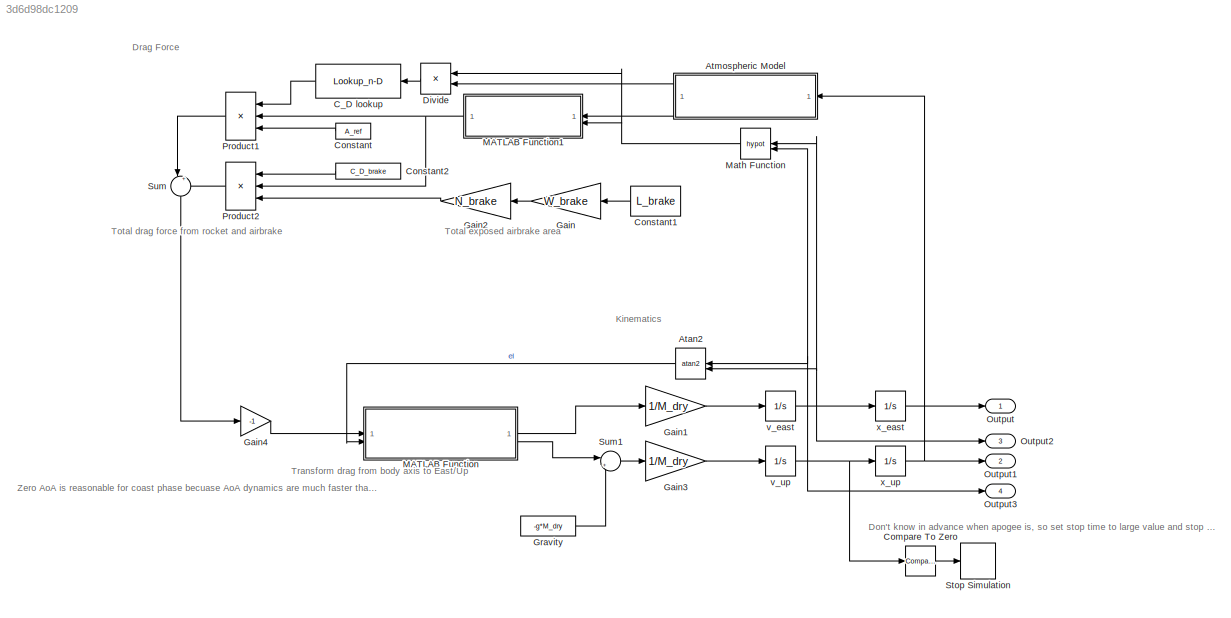
MODEL slx_3d6d98dc1209
KIND model
CONFIG AbsTol = auto
CONFIG EnableMultiTasking = off
CONFIG FixedStep = dt
CONFIG MaxStep = auto
CONFIG MinStep = auto
CONFIG RelTol = 1e-3
CONFIG SampleTimeConstraint = Unconstrained
CONFIG SolverName = FixedStepAuto
CONFIG StartTime = t_0
CONFIG StopTime = t_f
BLOCK [Trigonometry] Atan2
  NameLocation = top
  Operator = atan2
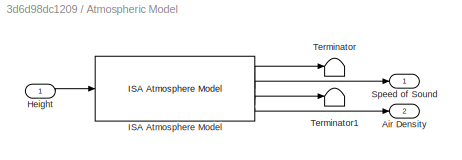
BLOCK [SubSystem] Atmospheric Model
  NameLocation = top
BLOCK [Outport] Atmospheric Model/Air Density
  NameLocation = top
  Port = 2
BLOCK [Inport] Atmospheric Model/Height
BLOCK [Reference] Atmospheric Model/ISA Atmosphere Model  REF=aerolibatmos2/ISA Atmosphere Model
  SourceBlock = aerolibatmos2/ISA Atmosphere Model
  SourceType = International Standard Atmosphere Model
BLOCK [Outport] Atmospheric Model/Speed of Sound
  NameLocation = top
BLOCK [Terminator] Atmospheric Model/Terminator
BLOCK [Terminator] Atmospheric Model/Terminator1
BLOCK [Lookup_n-D] C_D lookup
  BreakpointsForDimension1 = C_D_lookup.("Mach number")
  InputPortMap = u0
  InternalRulePriority = Speed
  NumberOfTableDimensions = 1
  RndMeth = Simplest
  Table = C_D_lookup.("Drag coefficient")
BLOCK [Reference] Compare To Zero  REF=simulink/Logic and Bit
Operations/Compare
To Zero
  SourceBlock = simulink/Logic and Bit\nOperations/Compare\nTo Zero
  SourceType = Compare To Zero
BLOCK [Constant] Constant
  Value = A_ref
BLOCK [Constant] Constant1
  NameLocation = top
  Value = L_brake
BLOCK [Constant] Constant2
  NameLocation = top
  Value = C_D_brake
BLOCK [Product] Divide
  Inputs = */
  NameLocation = top
BLOCK [Gain] Gain
  Gain = W_brake
  NameLocation = top
BLOCK [Gain] Gain1
  Gain = 1/M_dry
BLOCK [Gain] Gain2
  Gain = N_brake
  NameLocation = top
BLOCK [Gain] Gain3
  Gain = 1/M_dry
BLOCK [Gain] Gain4
  Gain = -1
BLOCK [Constant] Gravity
  NameLocation = left
  Value = -g*M_dry
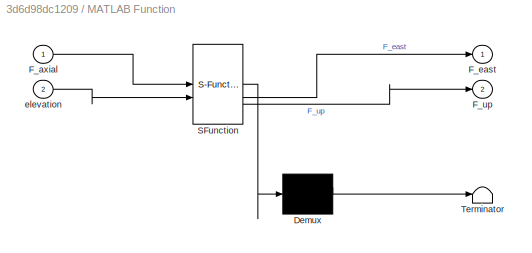
BLOCK [SubSystem] MATLAB Function
  ErrorFcn = Stateflow.Translate.translate
  PermitHierarchicalResolution = ExplicitOnly
  SFBlockType = MATLAB Function
  TreatAsAtomicUnit = on
BLOCK [Demux] MATLAB Function/ Demux 
  Outputs = 1
BLOCK [S-Function] MATLAB Function/ SFunction 
  EnableBusSupport = on
  FunctionName = sf_sfun
  PortCounts = [2 3]
  SFcnIsStateOwnerBlock = off
  SFunctionDeploymentMode = off
  Tag = Stateflow S-Function 1
BLOCK [Terminator] MATLAB Function/ Terminator 
BLOCK [Inport] MATLAB Function/F_axial
BLOCK [Outport] MATLAB Function/F_east
BLOCK [Outport] MATLAB Function/F_up
  Port = 2
BLOCK [Inport] MATLAB Function/elevation
  Port = 2
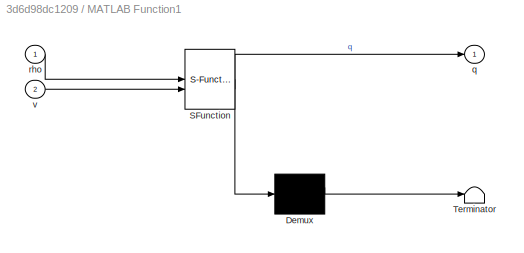
BLOCK [SubSystem] MATLAB Function1
  ErrorFcn = Stateflow.Translate.translate
  NameLocation = top
  PermitHierarchicalResolution = ExplicitOnly
  SFBlockType = MATLAB Function
  TreatAsAtomicUnit = on
BLOCK [Demux] MATLAB Function1/ Demux 
  Outputs = 1
BLOCK [S-Function] MATLAB Function1/ SFunction 
  EnableBusSupport = on
  FunctionName = sf_sfun
  PortCounts = [2 2]
  SFcnIsStateOwnerBlock = off
  SFunctionDeploymentMode = off
  Tag = Stateflow S-Function 3
BLOCK [Terminator] MATLAB Function1/ Terminator 
BLOCK [Outport] MATLAB Function1/q
BLOCK [Inport] MATLAB Function1/rho
BLOCK [Inport] MATLAB Function1/v
  Port = 2
BLOCK [Math] Math Function
  NameLocation = top
  Operator = hypot
BLOCK [Outport] Output
  SignalName = x_east
BLOCK [Outport] Output1
  Port = 2
  SignalName = x_up
BLOCK [Outport] Output2
  Port = 3
  SignalName = v_east
BLOCK [Outport] Output3
  Port = 4
  SignalName = v_up
BLOCK [Product] Product1
  Inputs = 3
  NameLocation = top
BLOCK [Product] Product2
  Inputs = 3
  NameLocation = top
BLOCK [Stop] Stop Simulation
BLOCK [Sum] Sum
  Inputs = |++
  NameLocation = left
BLOCK [Sum] Sum1
  Inputs = |++
BLOCK [Integrator] v_east
  ContinuousStateAttributes = 'v_east'
  InitialCondition = v_east_0
BLOCK [Integrator] v_up
  ContinuousStateAttributes = 'v_east'
  InitialCondition = v_up_0
BLOCK [Integrator] x_east
  ContinuousStateAttributes = 'x_up'
  InitialCondition = x_east_0
BLOCK [Integrator] x_up
  ContinuousStateAttributes = 'x_up'
  InitialCondition = x_up_0
ANNOTATION (root): Don't know in advance when apogee is, so set stop time to large value and stop sim at apogee
ANNOTATION (root): Drag Force
ANNOTATION (root): Kinematics
ANNOTATION (root): Total drag force from rocket and airbrake
ANNOTATION (root): Total exposed airbrake area
ANNOTATION (root): Transform drag from body axis to East/Up
ANNOTATION (root): Zero AoA is reasonable for coast phase becuase AoA dynamics are much faster than overall angle change. In that case, the angle is obtained from the speeds and the simulation only needs two degrees of freedom.
LINE Atan2:1 -> MATLAB Function:2
LINE Atmospheric Model/Height:1 -> Atmospheric Model/ISA Atmosphere Model:1
LINE Atmospheric Model/ISA Atmosphere Model:1 -> Atmospheric Model/Terminator:1
LINE Atmospheric Model/ISA Atmosphere Model:2 -> Atmospheric Model/Speed of Sound:1
LINE Atmospheric Model/ISA Atmosphere Model:3 -> Atmospheric Model/Terminator1:1
LINE Atmospheric Model/ISA Atmosphere Model:4 -> Atmospheric Model/Air Density:1
LINE Atmospheric Model:1 -> Divide:2
LINE Atmospheric Model:2 -> MATLAB Function1:1
LINE C_D lookup:1 -> Product1:1
LINE Compare To Zero:1 -> Stop Simulation:1
LINE Constant1:1 -> Gain:1
LINE Constant2:1 -> Product2:1
LINE Constant:1 -> Product1:3
LINE Divide:1 -> C_D lookup:1
LINE Gain1:1 -> v_east:1
LINE Gain2:1 -> Product2:3
LINE Gain3:1 -> v_up:1
LINE Gain4:1 -> MATLAB Function:1
LINE Gain:1 -> Gain2:1
LINE Gravity:1 -> Sum1:2
NET MATLAB Function1:1 -> Product1:2, Product2:2
LINE MATLAB Function:1 -> Gain1:1
LINE MATLAB Function:2 -> Sum1:1
NET Math Function:1 -> Divide:1, MATLAB Function1:2
LINE Product1:1 -> Sum:1
LINE Product2:1 -> Sum:2
LINE Sum1:1 -> Gain3:1
LINE Sum:1 -> Gain4:1
NET v_east:1 -> Atan2:2, Math Function:1, Output2:1, x_east:1
NET v_up:1 -> Atan2:1, Compare To Zero:1, Math Function:2, Output3:1, x_up:1
LINE x_east:1 -> Output:1
NET x_up:1 -> Atmospheric Model:1, Output1:1
note: NET lines group one-source signal fan-out (src -> all destinations, sorted); 1:1 wires keep LINE
CHART MATLAB Function states=1 transitions=1
  STATE_LABEL 'eML_blk_kernel()'
  STATE_LABEL 'SCRIPT:\nfunction [F_east, F_up] = project_force(F_axial, elevation)\n    F_east = F_axial*cos(elevation);\n    F_up = F_axial*sin(elevation);\nend'
CHART MATLAB Function1 states=1 transitions=1
  STATE_LABEL 'eML_blk_kernel()'
  STATE_LABEL 'SCRIPT:\nfunction q = dyn_pressure(rho, v)\n    q = 1/2*rho*v^2;\nend'
CHART  states=0 transitions=0
CHART  states=0 transitions=0
